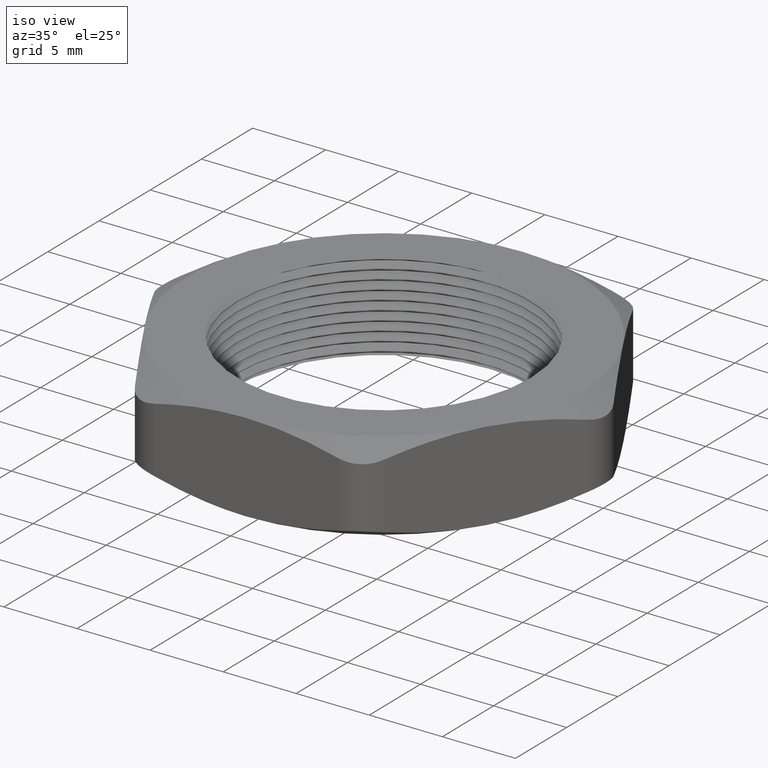
[diagram: clean part render]
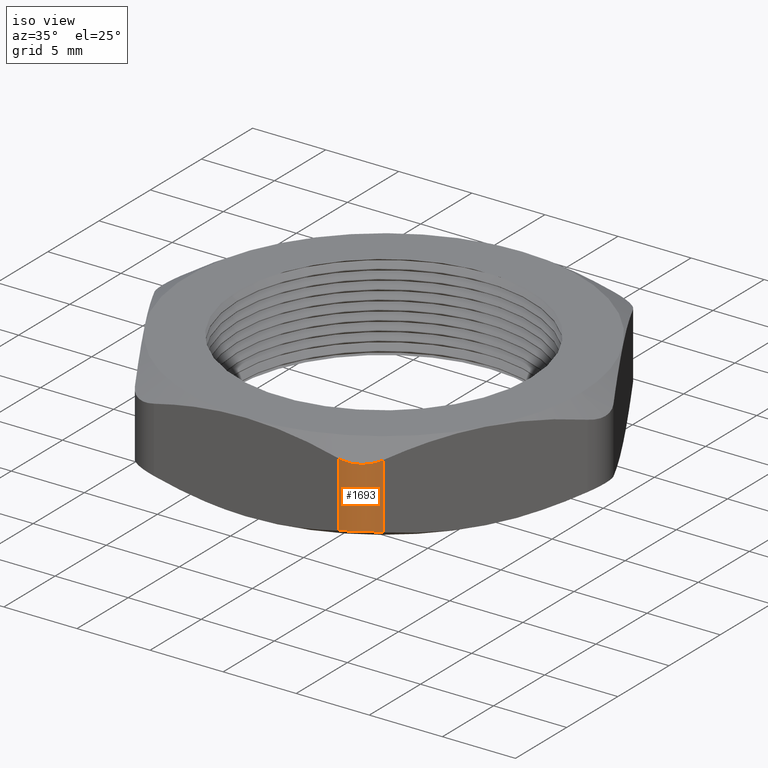
[diagram: same view with one face highlighted and labeled with its STEP entity id]
A machine part, iso view. The second image highlights one B-rep face of the part: STEP entity #1693.
In plain terms, the highlighted cylindrical surface (partial cylindrical patch) has radius 2.54 mm, axis along (0, 0, -1).
Its self-contained STEP definition (entity closure, byte-faithful):
#414 = CARTESIAN_POINT ( 'NONE',  ( 0.3348631561299829100, -0.4799999999999998700, 0.03190638126214304100 ) ) ;
#415 = CARTESIAN_POINT ( 'NONE',  ( 0.2482606157515391000, -0.5299999999999999200, 0.2080936187378569500 ) ) ;
#416 = DIRECTION ( 'NONE',  ( 0.0000000000000000000, 0.0000000000000000000, 1.000000000000000000 ) ) ;
#417 = VECTOR ( 'NONE', #416, 39.37007874015748100 ) ;
#418 = CARTESIAN_POINT ( 'NONE',  ( 0.2482606157515390400, -0.5299999999999999200, 0.2399999999999999900 ) ) ;
#419 = LINE ( 'NONE', #418, #417 ) ;
#441 = LINE ( 'NONE', #483, #482 ) ;
#442 = CARTESIAN_POINT ( 'NONE',  ( 0.3348631561299829600, -0.4799999999999998200, 0.2080936187378569500 ) ) ;
#481 = DIRECTION ( 'NONE',  ( 0.0000000000000000000, 0.0000000000000000000, -1.000000000000000000 ) ) ;
#482 = VECTOR ( 'NONE', #481, 39.37007874015748100 ) ;
#483 = CARTESIAN_POINT ( 'NONE',  ( 0.3348631561299829600, -0.4799999999999998700, 0.2399999999999999900 ) ) ;
#587 = VERTEX_POINT ( 'NONE', #688 ) ;
#688 = CARTESIAN_POINT ( 'NONE',  ( 0.2482606157515391300, -0.5299999999999999200, 0.03190638126214305500 ) ) ;
#719 = DIRECTION ( 'NONE',  ( -1.000000000000000000, 0.0000000000000000000, 0.0000000000000000000 ) ) ;
#720 = DIRECTION ( 'NONE',  ( 0.0000000000000000000, 0.0000000000000000000, -1.000000000000000000 ) ) ;
#721 = CARTESIAN_POINT ( 'NONE',  ( 0.2482606157515391000, -0.4299999999999998300, 0.2399999999999999900 ) ) ;
#722 = AXIS2_PLACEMENT_3D ( 'NONE', #721, #720, #719 ) ;
#724 = CYLINDRICAL_SURFACE ( 'NONE', #722, 0.1000000000000000100 ) ;
#727 = FACE_OUTER_BOUND ( 'NONE', #1696, .T. ) ;
#831 = CARTESIAN_POINT ( 'NONE',  ( 0.3348631561299829600, -0.4799999999999998200, 0.2080936187378569500 ) ) ;
#832 = CARTESIAN_POINT ( 'NONE',  ( 0.3305463269922462300, -0.4874769673941542500, 0.2059792017689853800 ) ) ;
#833 = CARTESIAN_POINT ( 'NONE',  ( 0.3251960974889905900, -0.4944721462800845700, 0.2043413060484506900 ) ) ;
#834 = CARTESIAN_POINT ( 'NONE',  ( 0.3129031630985335500, -0.5067923633483560900, 0.2021571432969641600 ) ) ;
#835 = CARTESIAN_POINT ( 'NONE',  ( 0.3057962390927459500, -0.5122600364598974800, 0.2015905404625064900 ) ) ;
#836 = CARTESIAN_POINT ( 'NONE',  ( 0.2905843605529146400, -0.5210261620504399400, 0.2015973893732988200 ) ) ;
#837 = CARTESIAN_POINT ( 'NONE',  ( 0.2823689258964635100, -0.5244102078064882800, 0.2021617336542235200 ) ) ;
#838 = CARTESIAN_POINT ( 'NONE',  ( 0.2654429589481258600, -0.5289011185036921500, 0.2043704327233682400 ) ) ;
#839 = CARTESIAN_POINT ( 'NONE',  ( 0.2568920763089042000, -0.5299999999999995800, 0.2059797399988196600 ) ) ;
#840 = CARTESIAN_POINT ( 'NONE',  ( 0.2482606157515391000, -0.5299999999999999200, 0.2080936187378569500 ) ) ;
#846 = B_SPLINE_CURVE_WITH_KNOTS ( 'NONE', 3,
 ( #840, #839, #838, #837, #836, #835, #834, #833, #832, #831 ),
 .UNSPECIFIED., .F., .F.,
 ( 4, 2, 2, 2, 4 ),
 ( 0.0000000000000000000, 0.0006680279323233922800, 0.001336055864646784600, 0.002004083796970176700, 0.002672111729293569100 ),
 .UNSPECIFIED. ) ;
#1052 = CARTESIAN_POINT ( 'NONE',  ( 0.2482606157515391300, -0.5299999999999999200, 0.03190638126214305500 ) ) ;
#1053 = CARTESIAN_POINT ( 'NONE',  ( 0.2568942740270131500, -0.5300000000000002500, 0.03402079823101462200 ) ) ;
#1054 = CARTESIAN_POINT ( 'NONE',  ( 0.3129680990160637600, -0.5067437669689071100, 0.03783826634577645800 ) ) ;
#1055 = CARTESIAN_POINT ( 'NONE',  ( 0.3253203252401384900, -0.4943309049566327900, 0.03562956727663179500 ) ) ;
#1056 = CARTESIAN_POINT ( 'NONE',  ( 0.3305474258513003100, -0.4874750641144414700, 0.03402026000118023300 ) ) ;
#1139 = CARTESIAN_POINT ( 'NONE',  ( 0.3348631561299829100, -0.4799999999999998700, 0.03190638126214304100 ) ) ;
#1173 = CARTESIAN_POINT ( 'NONE',  ( 0.2656273913978733400, -0.5288641547770688300, 0.03565869395154942100 ) ) ;
#1174 = CARTESIAN_POINT ( 'NONE',  ( 0.2824434795543634400, -0.5243782698420135200, 0.03784285670303583900 ) ) ;
#1175 = CARTESIAN_POINT ( 'NONE',  ( 0.2907320853714411800, -0.5209573296660069400, 0.03840945953749350100 ) ) ;
#1176 = CARTESIAN_POINT ( 'NONE',  ( 0.3059297120955313800, -0.5121665192065006900, 0.03840261062670117400 ) ) ;
#1206 = B_SPLINE_CURVE_WITH_KNOTS ( 'NONE', 3,
 ( #1139, #1056, #1055, #1054, #1176, #1175, #1174, #1173, #1053, #1052 ),
 .UNSPECIFIED., .F., .F.,
 ( 4, 2, 2, 2, 4 ),
 ( 1.748223473168675600E-018, 0.0006680279323233919600, 0.001336055864646782200, 0.002004083796970175000, 0.002672111729293567400 ),
 .UNSPECIFIED. ) ;
#1693 = ADVANCED_FACE ( 'NONE', ( #727 ), #724, .T. ) ;
#1696 = EDGE_LOOP ( 'NONE', ( #1797, #1740, #1742, #1716 ) ) ;
#1716 = ORIENTED_EDGE ( 'NONE', *, *, #2463, .F. ) ;
#1740 = ORIENTED_EDGE ( 'NONE', *, *, #2446, .F. ) ;
#1742 = ORIENTED_EDGE ( 'NONE', *, *, #1839, .F. ) ;
#1797 = ORIENTED_EDGE ( 'NONE', *, *, #1831, .F. ) ;
#1831 = EDGE_CURVE ( 'NONE', #2447, #2461, #846, .T. ) ;
#1839 = EDGE_CURVE ( 'NONE', #2448, #587, #1206, .T. ) ;
#2446 = EDGE_CURVE ( 'NONE', #587, #2447, #419, .T. ) ;
#2447 = VERTEX_POINT ( 'NONE', #415 ) ;
#2448 = VERTEX_POINT ( 'NONE', #414 ) ;
#2461 = VERTEX_POINT ( 'NONE', #442 ) ;
#2463 = EDGE_CURVE ( 'NONE', #2461, #2448, #441, .T. ) ;